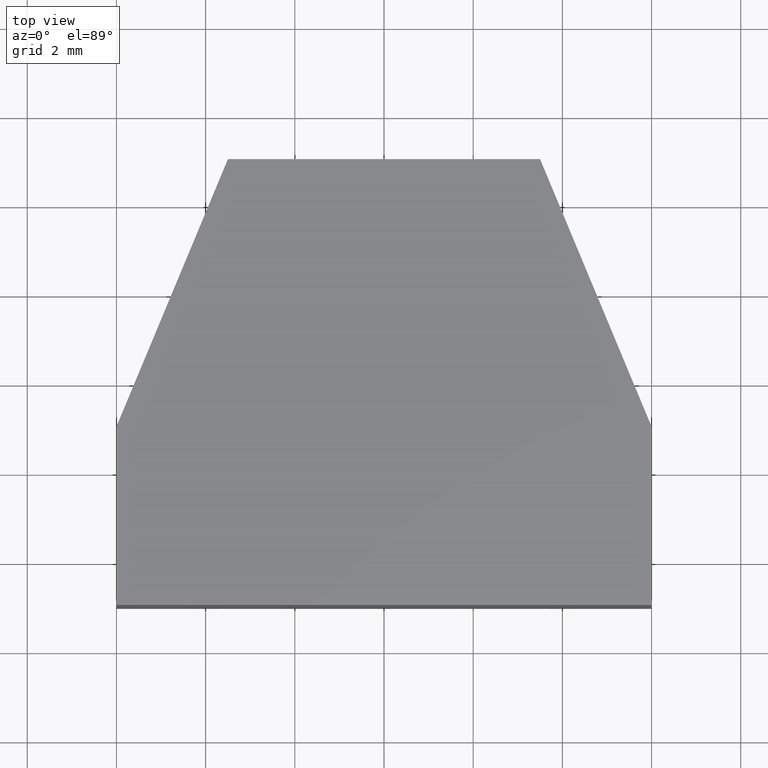
[diagram: clean part render]
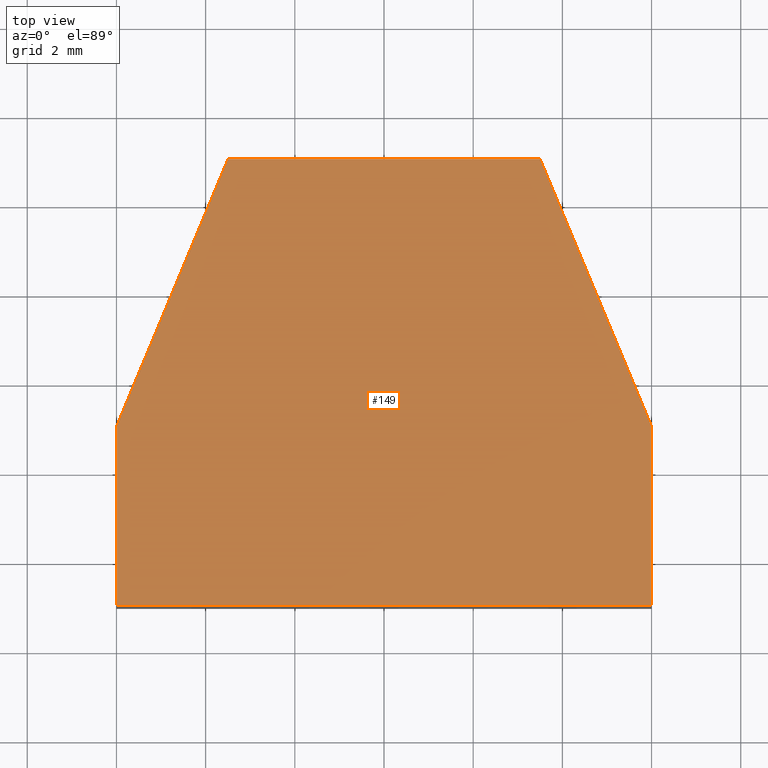
[diagram: same view with one face highlighted and labeled with its STEP entity id]
A machine part, top view. The second image highlights one B-rep face of the part: STEP entity #149.
In plain terms, the highlighted planar face has unit normal (0, 0, 1).
Its self-contained STEP definition (entity closure, byte-faithful):
#23=FACE_OUTER_BOUND('',#31,.T.);
#31=EDGE_LOOP('',(#128,#129,#130,#131,#132,#133));
#38=LINE('',#234,#56);
#41=LINE('',#239,#59);
#43=LINE('',#243,#61);
#45=LINE('',#247,#63);
#47=LINE('',#251,#65);
#49=LINE('',#254,#67);
#56=VECTOR('',#193,10.);
#59=VECTOR('',#198,10.);
#61=VECTOR('',#202,10.);
#63=VECTOR('',#206,10.);
#65=VECTOR('',#210,10.);
#67=VECTOR('',#214,10.);
#74=VERTEX_POINT('',#232);
#75=VERTEX_POINT('',#233);
#76=VERTEX_POINT('',#238);
#77=VERTEX_POINT('',#242);
#78=VERTEX_POINT('',#246);
#79=VERTEX_POINT('',#250);
#86=EDGE_CURVE('',#74,#75,#38,.T.);
#89=EDGE_CURVE('',#75,#76,#41,.T.);
#91=EDGE_CURVE('',#76,#77,#43,.T.);
#93=EDGE_CURVE('',#77,#78,#45,.T.);
#95=EDGE_CURVE('',#78,#79,#47,.T.);
#97=EDGE_CURVE('',#79,#74,#49,.T.);
#128=ORIENTED_EDGE('',*,*,#86,.F.);
#129=ORIENTED_EDGE('',*,*,#97,.F.);
#130=ORIENTED_EDGE('',*,*,#95,.F.);
#131=ORIENTED_EDGE('',*,*,#93,.F.);
#132=ORIENTED_EDGE('',*,*,#91,.F.);
#133=ORIENTED_EDGE('',*,*,#89,.F.);
#141=PLANE('',#180);
#149=ADVANCED_FACE('',(#23),#141,.T.);
#180=AXIS2_PLACEMENT_3D('',#255,#215,#216);
#193=DIRECTION('',(-2.77555756156289E-16,1.,0.));
#198=DIRECTION('',(0.384615384615385,0.923076923076923,0.));
#202=DIRECTION('',(1.,0.,0.));
#206=DIRECTION('',(0.384615384615385,-0.923076923076923,0.));
#210=DIRECTION('',(-2.77555756156289E-16,-1.,0.));
#214=DIRECTION('',(-1.,0.,0.));
#215=DIRECTION('center_axis',(0.,0.,1.));
#216=DIRECTION('ref_axis',(1.,0.,0.));
#232=CARTESIAN_POINT('',(-6.,-5.,2.5));
#233=CARTESIAN_POINT('',(-6.,-1.,2.5));
#234=CARTESIAN_POINT('',(-6.,-5.,2.5));
#238=CARTESIAN_POINT('',(-3.5,5.,2.5));
#239=CARTESIAN_POINT('',(-6.,-1.,2.5));
#242=CARTESIAN_POINT('',(3.5,5.,2.5));
#243=CARTESIAN_POINT('',(-3.5,5.,2.5));
#246=CARTESIAN_POINT('',(6.,-1.,2.5));
#247=CARTESIAN_POINT('',(3.5,5.,2.5));
#250=CARTESIAN_POINT('',(6.,-5.,2.5));
#251=CARTESIAN_POINT('',(6.,-1.,2.5));
#254=CARTESIAN_POINT('',(6.,-5.,2.5));
#255=CARTESIAN_POINT('Origin',(-4.85722573273506E-16,-0.575,2.5));